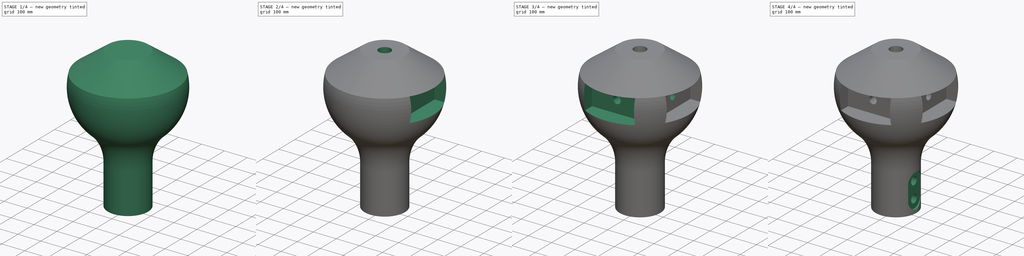
[diagram: build sequence overview — one tinted view per stage of 4, left to right]
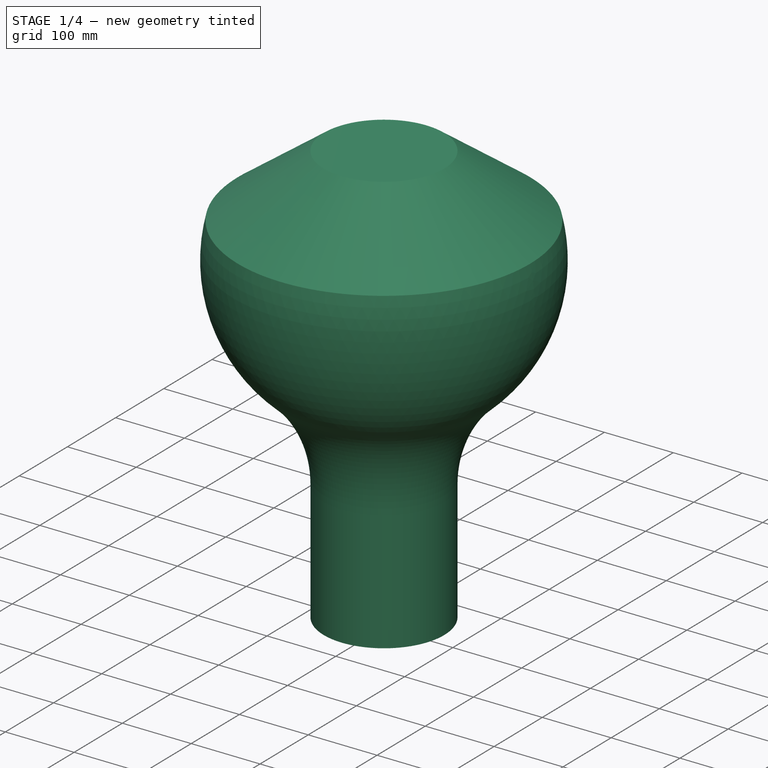
[diagram: stage 1 of 4 — iso view after this stage's code; geometry added in this stage tinted green]
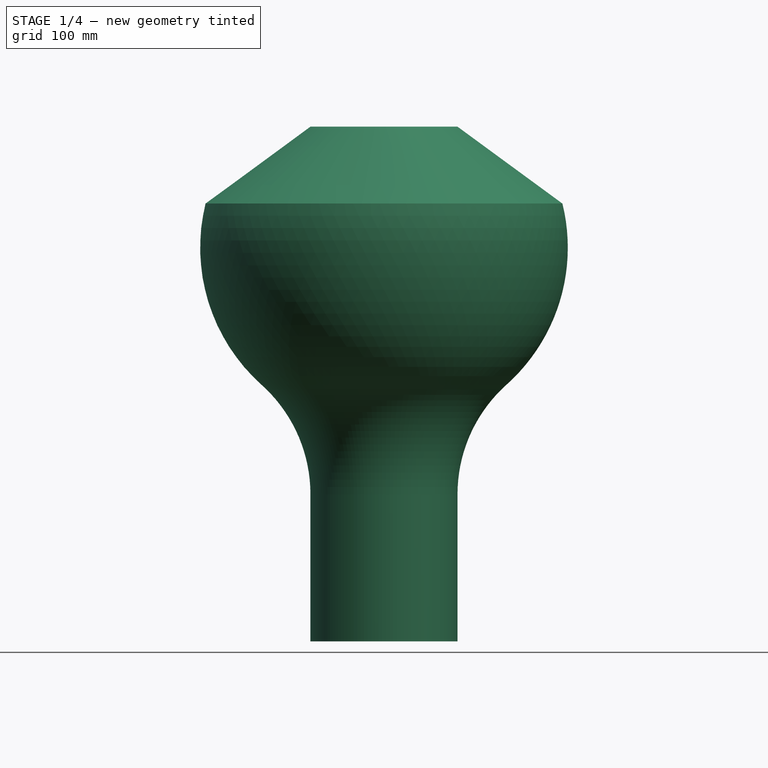
[diagram: stage 1 of 4 — front view after this stage's code; geometry added in this stage tinted green]
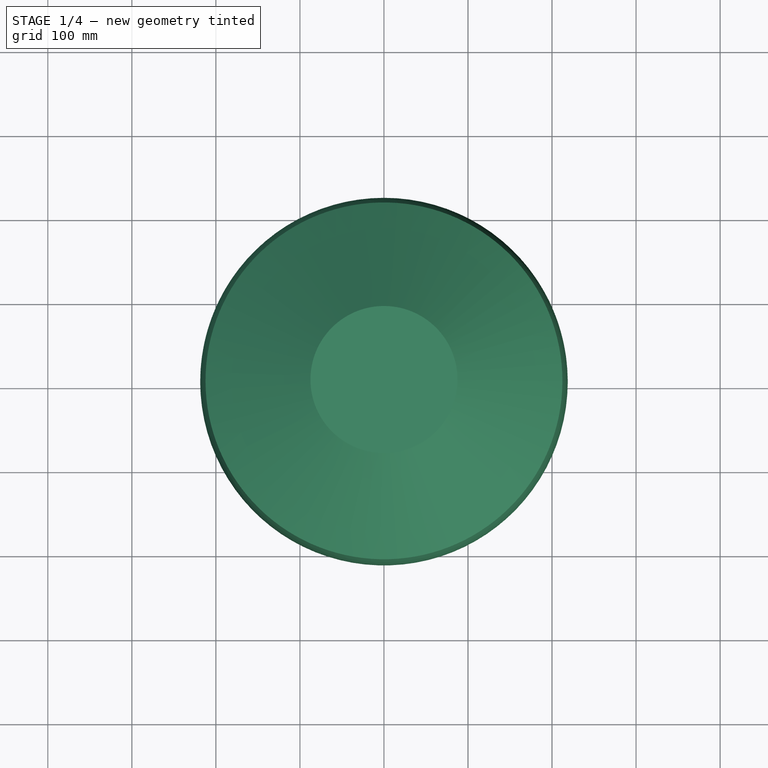
[diagram: stage 1 of 4 — top view after this stage's code; geometry added in this stage tinted green]
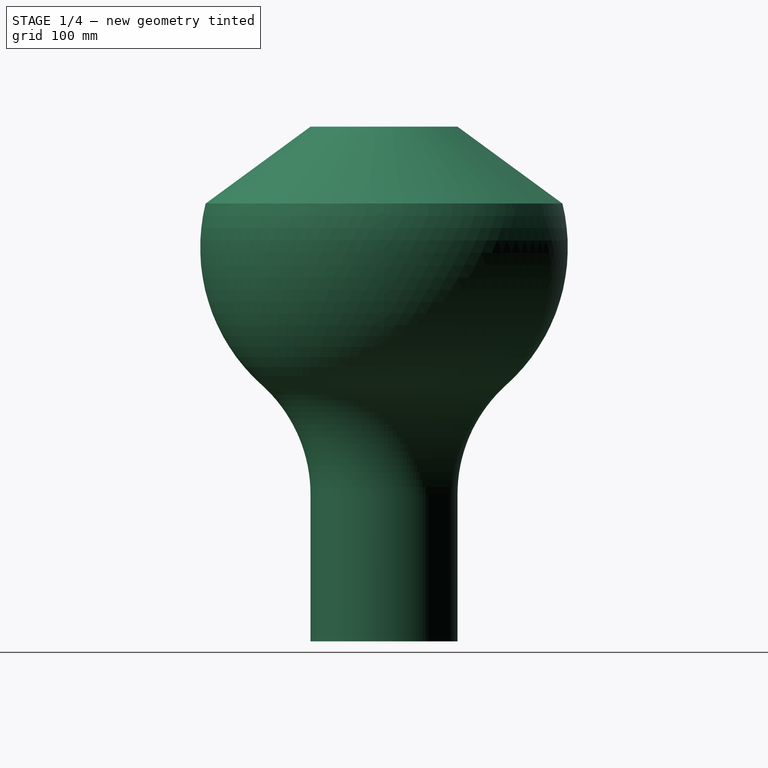
[diagram: stage 1 of 4 — right view after this stage's code; geometry added in this stage tinted green]
FCSTD DOCUMENT  (FreeCAD 1.0R39109 (Git))
Label: 3
License: All rights reserved
LicenseURL: https://en.wikipedia.org/wiki/All_rights_reserved
objects: Sketcher::SketchObject×8, PartDesign::Pocket×5, PartDesign::Plane×3, PartDesign::PolarPattern×2, PartDesign::Revolution×1, PartDesign::AdditiveLoft×1, PartDesign::Body×1
note: 45 computed .brp shape members not serialized (recipe doc carries the construction recipe); baked Part::Feature solids carry a one-line shape summary decoded from their .brp

FEATURE [Sketcher::SketchObject] Sketch
  ArcFitTolerance = 1e-06
  AttachmentSupport = -> [XZ_Plane]
  FullyConstrained = true
  MakeInternals = false
  MapMode = 5
  Placement = pos=(0,0,0) rot=(1,0,0;1.5708rad)
  sketch-geometry (6):
    g0: LineSegment StartX=0 StartY=0 StartZ=0 EndX=87.5 EndY=0 EndZ=0
    g1: LineSegment StartX=87.5 StartY=0 StartZ=0 EndX=87.5 EndY=175 EndZ=0
    g2: ArcOfCircle CenterX=0 CenterY=468.484 CenterZ=0 NormalX=0 NormalY=0 NormalZ=1 AngleXU=0 Radius=218.75 StartAngle=5.44212 EndAngle=6.52555
    g3: ArcOfCircle CenterX=262.5 CenterY=175 CenterZ=0 NormalX=0 NormalY=0 NormalZ=1 AngleXU=0 Radius=175 StartAngle=2.30052 EndAngle=3.14159
    g4: LineSegment StartX=0 StartY=520.984 StartZ=0 EndX=0 EndY=0 EndZ=0
    g5: LineSegment StartX=0 StartY=520.984 StartZ=0 EndX=212.357 EndY=520.984 EndZ=0
  constraints (17):
    c: Coincident(g0,g-1)
    c: PointOnObject(g0,g-1)
    c: Coincident(g1,g0)
    c: Vertical(g1)
    c: Diameter(g2) = 437.5
    c: PointOnObject(g2,g-2)
    c: Tangent(g2,g3) = 1.5708
    c: Tangent(g1,g3) = 1.5708
    c: Radius(g3) = 175
    c: Distance(g1) = 175
    c: Coincident(g4,g0)
    c: Vertical(g4)
    c: Horizontal(g5)
    c: Distance(g2,g5) = 52.5
    c: Coincident(g4,g5)
    c: Coincident(g5,g2)
    c: Distance(g0) = 87.5
FEATURE [PartDesign::Revolution] Revolution
  Angle = 360
  Angle2 = 60
  Axis = (0,2e-16,1)
  Base = (0,0,0)
  Placement = pos=(0,0,0) rot=(1,0,0;1.5708rad)
  Profile = -> Sketch
  ReferenceAxis = -> Sketch [V_Axis]
  Refine = true
  Reversed = true
  Suppressed = false
  Type = 0
FEATURE [PartDesign::Plane] DatumPlane
  AttachmentOffset = pos=(0,0,612.5) rot=(0,0,1;0rad)
  AttachmentSupport = -> [XY_Plane]
  Length = 509.656
  MapMode = 5
  Placement = pos=(0,0,612.5) rot=(0,0,1;0rad)
  ResizeMode = 0
  Width = 509.656
FEATURE [Sketcher::SketchObject] Sketch001
  ArcFitTolerance = 1e-06
  AttachmentSupport = -> [DatumPlane]
  FullyConstrained = true
  MakeInternals = false
  MapMode = 5
  Placement = pos=(0,0,612.5) rot=(0,0,1;0rad)
  sketch-geometry (1):
    g0: Circle CenterX=0 CenterY=0 CenterZ=0 NormalX=0 NormalY=0 NormalZ=1 AngleXU=0 Radius=87.5
  constraints (2):
    c: Diameter(g0) = 175
    c: Coincident(g0,g-1)
FEATURE [PartDesign::AdditiveLoft] AdditiveLoft
  BaseFeature = -> Revolution
  Closed = false
  Placement = pos=(0,0,0) rot=(1,0,0;1.5708rad)
  Profile = -> Revolution [Edge6]
  Refine = true
  Ruled = false
  Sections = -> [Sketch001]
  Suppressed = false
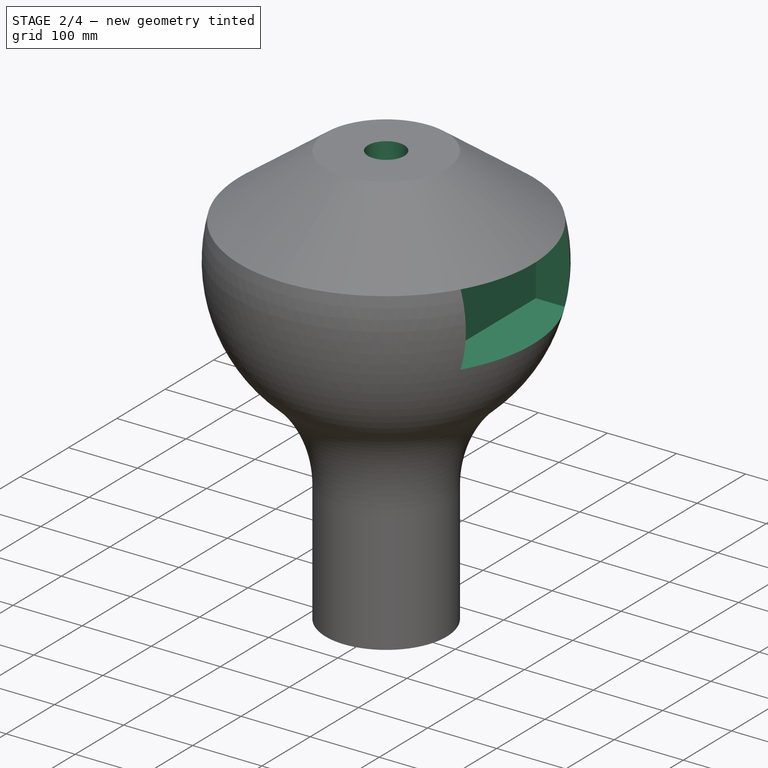
[diagram: stage 2 of 4 — iso view after this stage's code; geometry added in this stage tinted green]
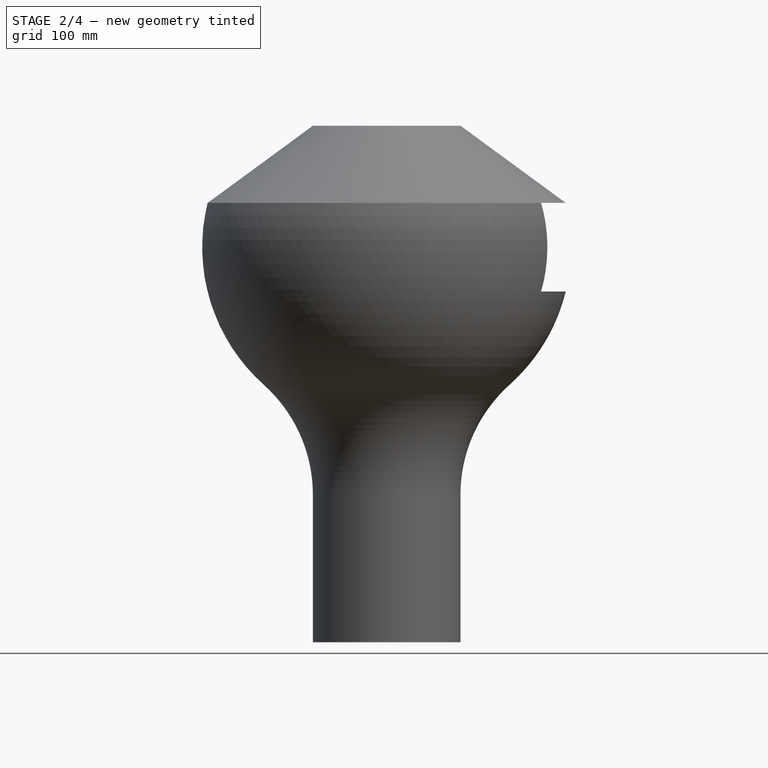
[diagram: stage 2 of 4 — front view after this stage's code; geometry added in this stage tinted green]
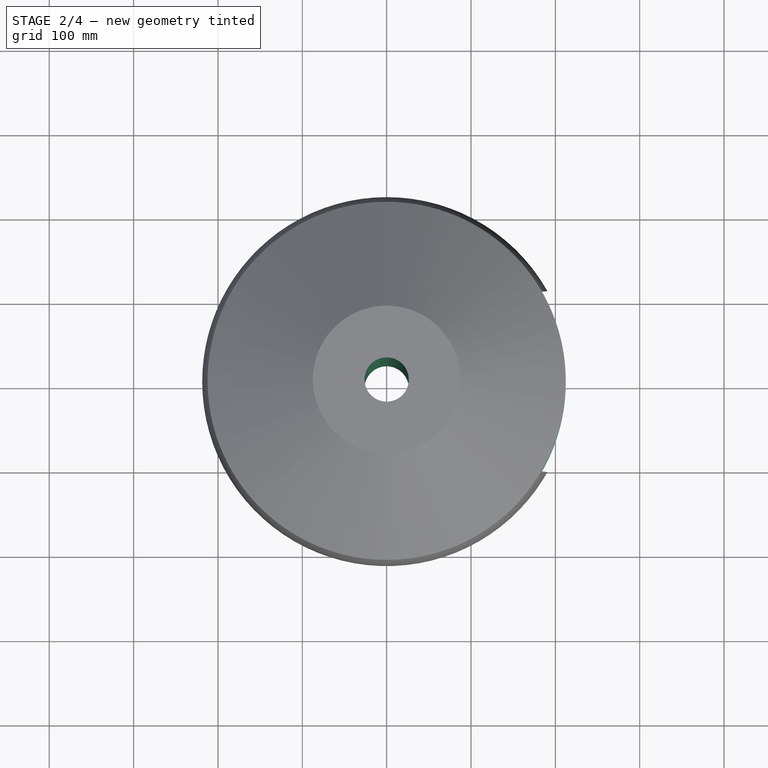
[diagram: stage 2 of 4 — top view after this stage's code; geometry added in this stage tinted green]
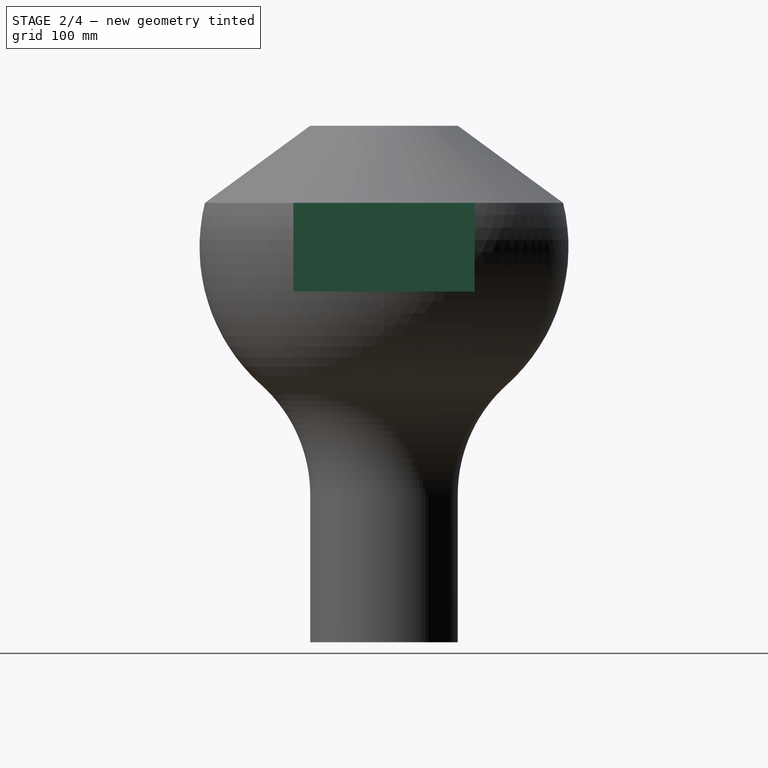
[diagram: stage 2 of 4 — right view after this stage's code; geometry added in this stage tinted green]
FEATURE [Sketcher::SketchObject] Sketch002
  ArcFitTolerance = 1e-06
  AttachmentSupport = -> [AdditiveLoft]
  FullyConstrained = true
  MakeInternals = false
  MapMode = 5
  Placement = pos=(0,0,612.5) rot=(0,0,1;3.14159rad)
  sketch-geometry (1):
    g0: Circle CenterX=0 CenterY=0 CenterZ=0 NormalX=0 NormalY=0 NormalZ=1 AngleXU=0 Radius=26.25
  constraints (2):
    c: Diameter(g0) = 52.5
    c: Coincident(g0,g-1)
FEATURE [PartDesign::Pocket] Pocket
  BaseFeature = -> AdditiveLoft
  Direction = (0,0,-1)
  Length = 5
  Length2 = 5
  Placement = pos=(0,0,0) rot=(1,0,0;1.5708rad)
  Profile = -> Sketch002
  ReferenceAxis = -> Sketch002 [N_Axis]
  Refine = true
  Suppressed = false
  Type = 1
FEATURE [Sketcher::SketchObject] Sketch003
  ArcFitTolerance = 1e-06
  AttachmentSupport = -> [XY_Plane]
  FullyConstrained = true
  MakeInternals = false
  MapMode = 5
  sketch-geometry (6):
    g0: Circle [constr] CenterX=0 CenterY=0 CenterZ=0 NormalX=0 NormalY=0 NormalZ=1 AngleXU=0 Radius=218.75
    g1: LineSegment [constr] StartX=181.233 StartY=122.5 StartZ=0 EndX=181.233 EndY=-122.5 EndZ=0
    g2: LineSegment StartX=141.233 StartY=167.048 StartZ=0 EndX=141.233 EndY=-167.048 EndZ=0
    g3: Circle [constr] CenterX=0 CenterY=0 CenterZ=0 NormalX=0 NormalY=0 NormalZ=1 AngleXU=0 Radius=87.5
    g4: LineSegment [constr] StartX=85.4122 StartY=-19 StartZ=0 EndX=85.4122 EndY=19 EndZ=0
    g5: LineSegment StartX=77.4122 StartY=40.7872 StartZ=0 EndX=77.4122 EndY=-40.7872 EndZ=0
  constraints (20):
    c: Diameter(g0) = 437.5
    c: Coincident(g0,g-1)
    c: Distance(g1) = 245
    c: PointOnObject(g1,g0)
    c: PointOnObject(g1,g0)
    c: Vertical(g1)
    c: PointOnObject(g2,g0)
    c: PointOnObject(g2,g0)
    c: Vertical(g2)
    c: Distance(g2,g1) = 40
    c: Diameter(g3) = 175
    c: Coincident(g3,g0)
    c: PointOnObject(g4,g3)
    c: PointOnObject(g4,g3)
    c: Vertical(g4)
    c: Distance(g4) = 38
    c: PointOnObject(g5,g3)
    c: PointOnObject(g5,g3)
    c: Vertical(g5)
    c: Distance(g4,g5) = 8
FEATURE [PartDesign::Plane] DatumPlane001
  AttachmentSupport = -> [YZ_Plane,Sketch003]
  Length = 528.781
  MapMode = 53
  Placement = pos=(141.233,-1.57e-14,1.57e-14) rot=(0.57735,0.57735,0.57735;2.0944rad)
  ResizeMode = 0
  Width = 741.568
FEATURE [Sketcher::SketchObject] Sketch004
  ArcFitTolerance = 1e-06
  AttachmentSupport = -> [DatumPlane001]
  ExternalGeometry = -> [Pocket]
  FullyConstrained = true
  MakeInternals = false
  MapMode = 5
  Placement = pos=(141.233,-1.57e-14,1.57e-14) rot=(0.57735,0.57735,0.57735;2.0944rad)
  sketch-geometry (4):
    g0: LineSegment StartX=-107.5 StartY=520.984 StartZ=0 EndX=-107.5 EndY=415.984 EndZ=0
    g1: LineSegment StartX=-107.5 StartY=415.984 StartZ=0 EndX=107.5 EndY=415.984 EndZ=0
    g2: LineSegment StartX=107.5 StartY=415.984 StartZ=0 EndX=107.5 EndY=520.984 EndZ=0
    g3: LineSegment StartX=107.5 StartY=520.984 StartZ=0 EndX=-107.5 EndY=520.984 EndZ=0
  constraints (11):
    c: Coincident(g0,g1)
    c: Coincident(g1,g2)
    c: Coincident(g2,g3)
    c: Coincident(g3,g0)
    c: Vertical(g0)
    c: Vertical(g2)
    c: Horizontal(g1)
    c: Distance(g0,g2) = 215
    c: Distance(g1,g3) = 105
    c: Symmetric(g2,g0,g-2)
    c: PointOnObject(g0,g-3)
FEATURE [PartDesign::Pocket] Pocket001
  BaseFeature = -> Pocket
  Direction = (-1,0,0)
  Length = 5
  Length2 = 5
  Placement = pos=(0,0,0) rot=(1,0,0;1.5708rad)
  Profile = -> Sketch004
  ReferenceAxis = -> Sketch004 [N_Axis]
  Refine = true
  Reversed = true
  Suppressed = false
  Type = 1
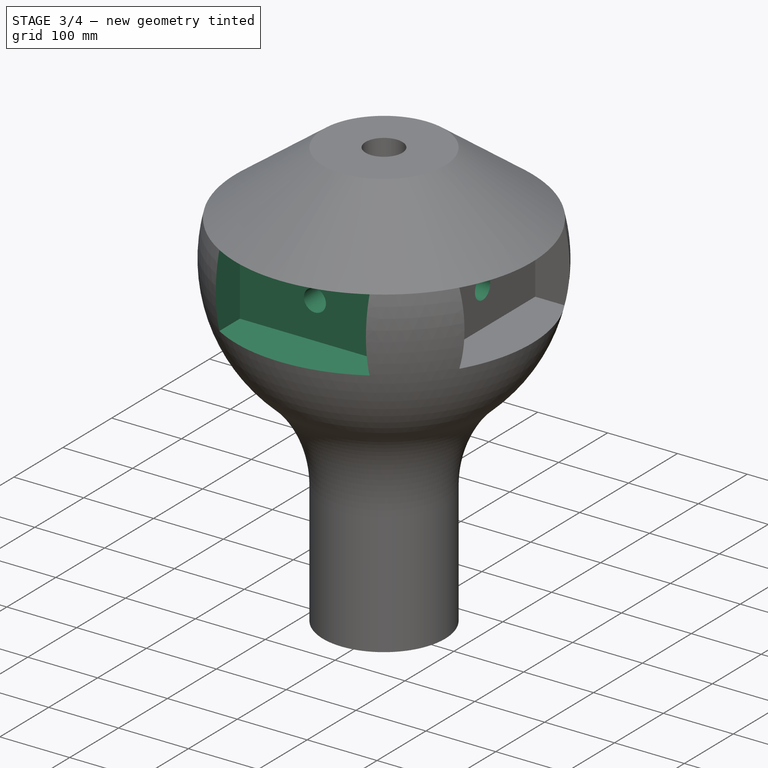
[diagram: stage 3 of 4 — iso view after this stage's code; geometry added in this stage tinted green]
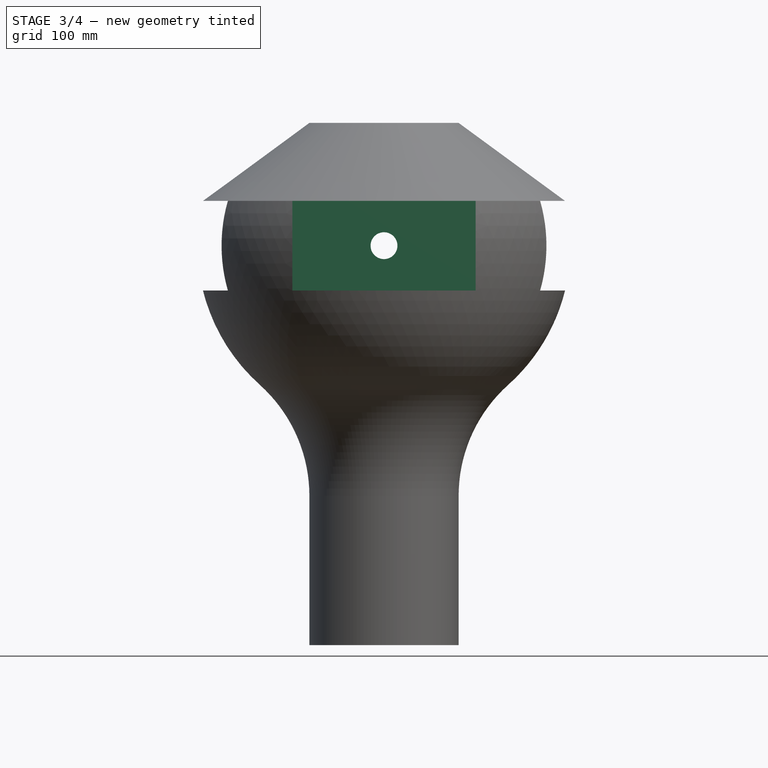
[diagram: stage 3 of 4 — front view after this stage's code; geometry added in this stage tinted green]
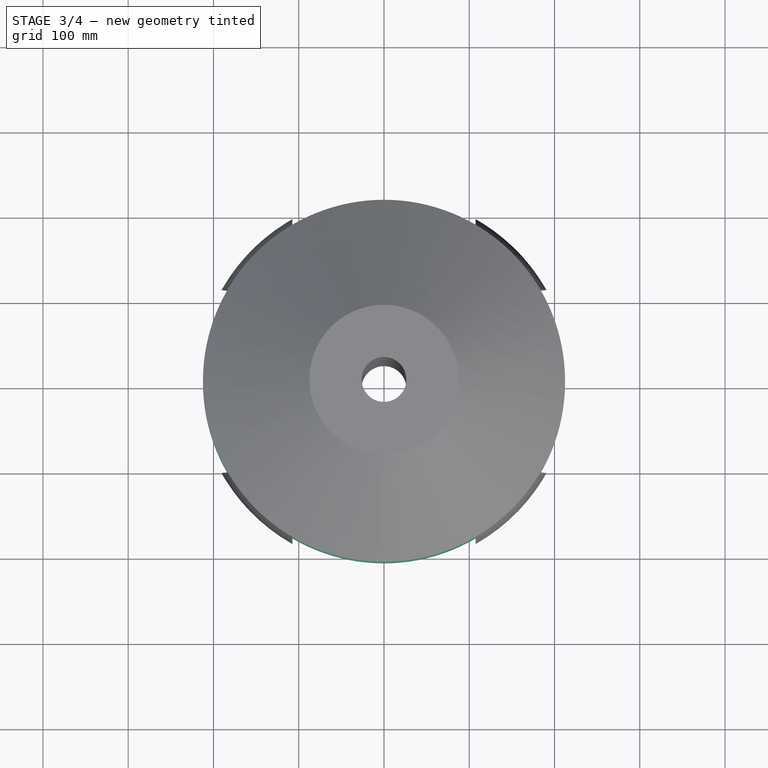
[diagram: stage 3 of 4 — top view after this stage's code; geometry added in this stage tinted green]
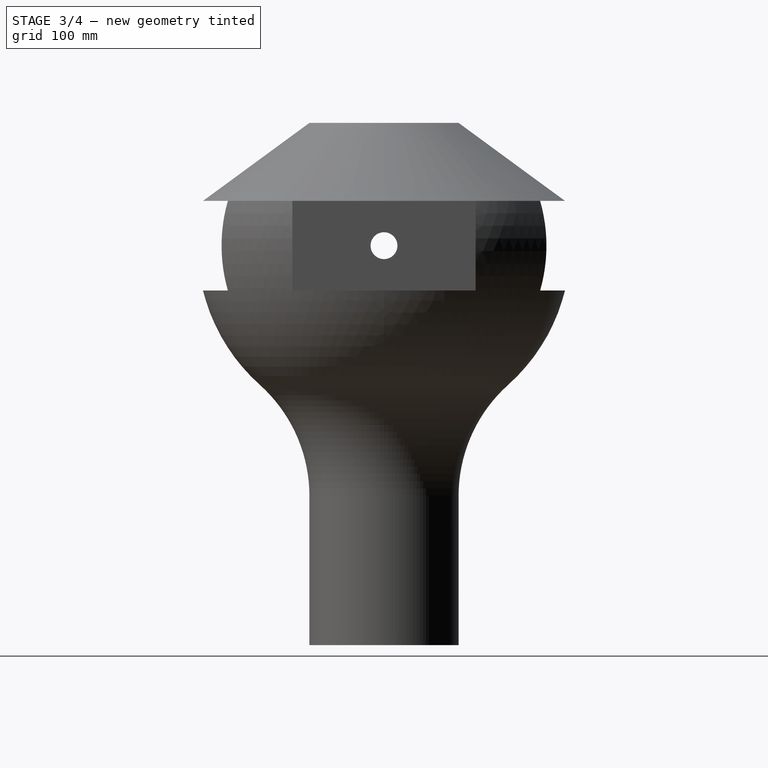
[diagram: stage 3 of 4 — right view after this stage's code; geometry added in this stage tinted green]
FEATURE [PartDesign::PolarPattern] PolarPattern
  Angle = 360
  Axis = -> Z_Axis
  BaseFeature = -> Pocket001
  Mode = 0
  Occurrences = 4
  Offset = 120
  Originals = -> [Pocket001]
  Placement = pos=(0,0,0) rot=(1,0,0;1.5708rad)
  Refine = true
  Suppressed = false
  TransformMode = 0
FEATURE [Sketcher::SketchObject] Sketch005
  ArcFitTolerance = 1e-06
  AttachmentSupport = -> [PolarPattern]
  ExternalGeometry = -> [PolarPattern]
  FullyConstrained = true
  MakeInternals = false
  MapMode = 5
  Placement = pos=(141.233,0,0) rot=(0.707107,0,0.707107;3.14159rad)
  sketch-geometry (2):
    g0: LineSegment [constr] StartX=415.984 StartY=-107.5 StartZ=0 EndX=520.984 EndY=107.5 EndZ=0
    g1: Circle CenterX=468.484 CenterY=-2.1885e-12 CenterZ=0 NormalX=0 NormalY=0 NormalZ=1 AngleXU=0 Radius=15.75
  constraints (4):
    c: Coincident(g0,g-4)
    c: Coincident(g0,g-3)
    c: Diameter(g1) = 31.5
    c: Symmetric(g0,g0,g1)
FEATURE [PartDesign::Pocket] Pocket002
  BaseFeature = -> PolarPattern
  Direction = (-1,0,2e-16)
  Length = 5
  Length2 = 5
  Placement = pos=(0,0,0) rot=(1,0,0;1.5708rad)
  Profile = -> Sketch005
  ReferenceAxis = -> Sketch005 [N_Axis]
  Refine = true
  Suppressed = false
  Type = 1
FEATURE [PartDesign::PolarPattern] PolarPattern001
  Angle = 360
  Axis = -> Z_Axis
  BaseFeature = -> Pocket002
  Mode = 0
  Occurrences = 4
  Offset = 120
  Originals = -> [Pocket002]
  Placement = pos=(0,0,0) rot=(1,0,0;1.5708rad)
  Refine = true
  Suppressed = false
  TransformMode = 0
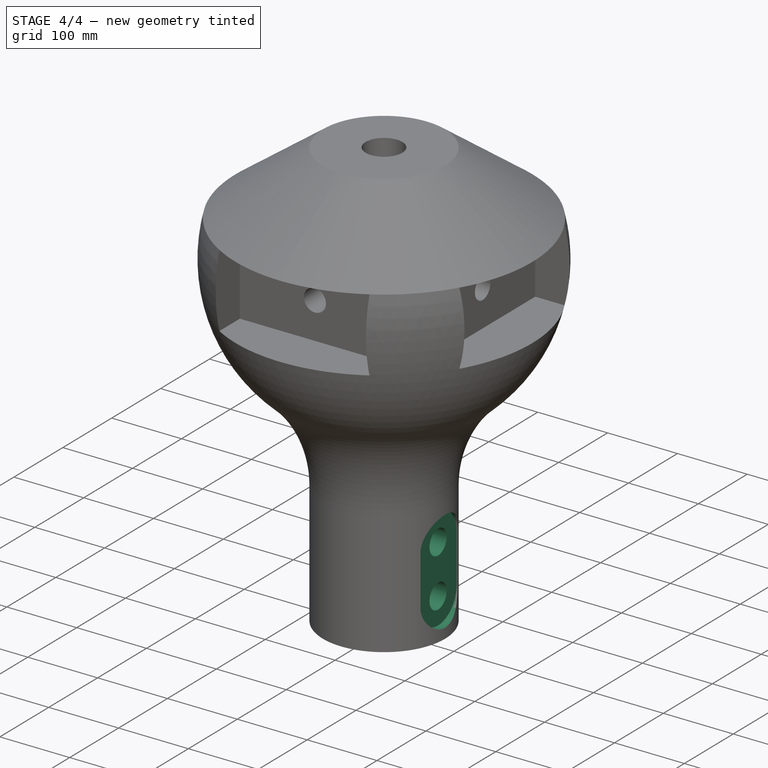
[diagram: stage 4 of 4 — iso view after this stage's code; geometry added in this stage tinted green]
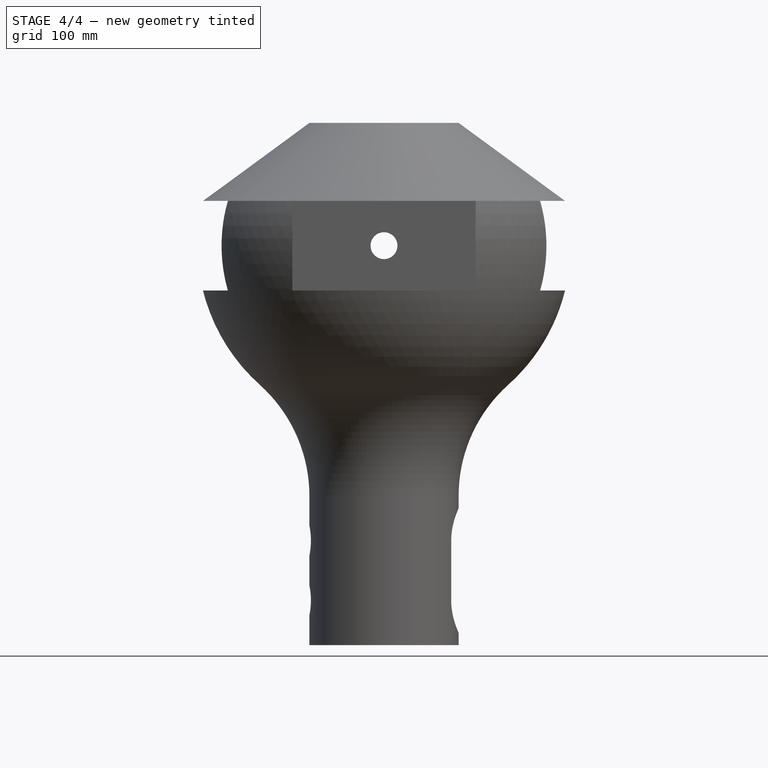
[diagram: stage 4 of 4 — front view after this stage's code; geometry added in this stage tinted green]
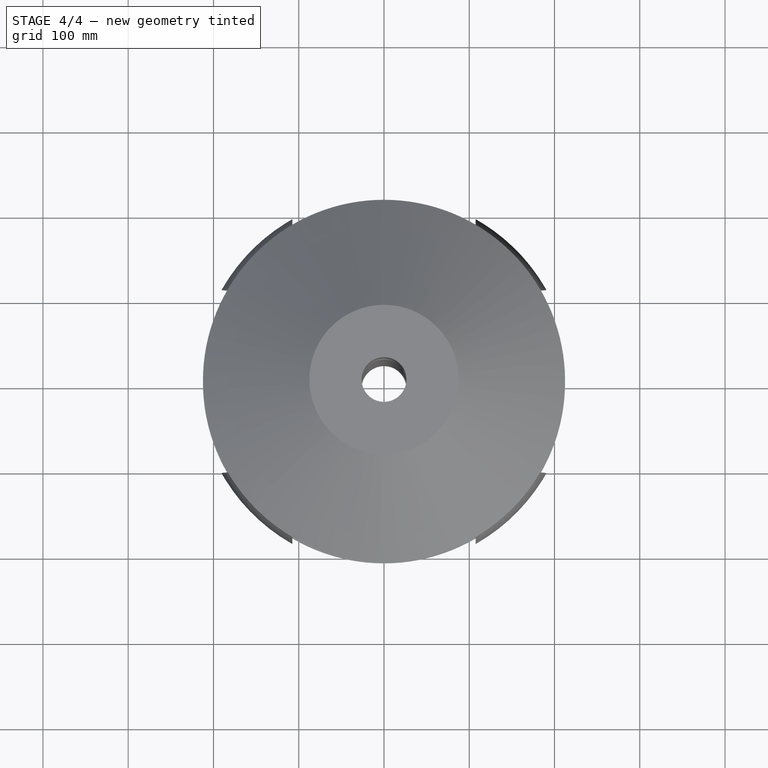
[diagram: stage 4 of 4 — top view after this stage's code; geometry added in this stage tinted green]
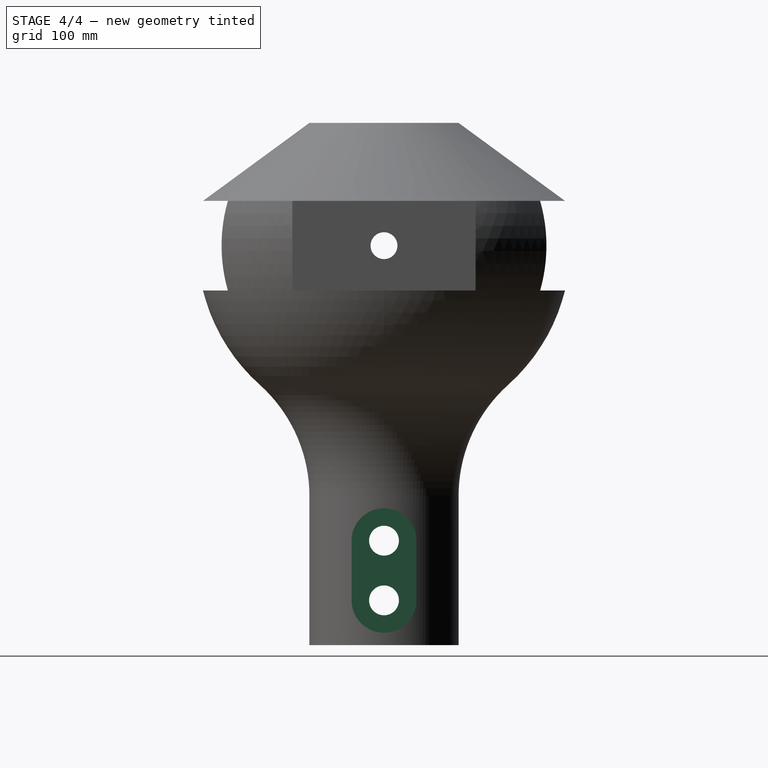
[diagram: stage 4 of 4 — right view after this stage's code; geometry added in this stage tinted green]
FEATURE [PartDesign::Plane] DatumPlane002
  AttachmentSupport = -> [YZ_Plane,Sketch003]
  Length = 528.781
  MapMode = 53
  Placement = pos=(77.4122,-8.6e-15,8.6e-15) rot=(0.57735,0.57735,0.57735;2.0944rad)
  ResizeMode = 0
  Width = 741.568
FEATURE [Sketcher::SketchObject] Sketch006
  ArcFitTolerance = 1e-06
  AttachmentSupport = -> [DatumPlane002]
  FullyConstrained = true
  MakeInternals = false
  MapMode = 5
  Placement = pos=(77.4122,-8.6e-15,8.6e-15) rot=(0.57735,0.57735,0.57735;2.0944rad)
  sketch-geometry (4):
    g0: ArcOfCircle CenterX=-3e-15 CenterY=122.5 CenterZ=0 NormalX=0 NormalY=0 NormalZ=1 AngleXU=0 Radius=38 StartAngle=0 EndAngle=3.14159
    g1: ArcOfCircle CenterX=0 CenterY=52.5 CenterZ=0 NormalX=0 NormalY=0 NormalZ=1 AngleXU=0 Radius=38 StartAngle=3.14159 EndAngle=6.28319
    g2: LineSegment StartX=38 StartY=122.5 StartZ=0 EndX=38 EndY=52.5 EndZ=0
    g3: LineSegment StartX=-38 StartY=122.5 StartZ=0 EndX=-38 EndY=52.5 EndZ=0
  constraints (10):
    c: Tangent(g0,g2) = 1.5708
    c: Tangent(g0,g3) = -1.5708
    c: Tangent(g1,g2) = 1.5708
    c: Tangent(g1,g3) = -1.5708
    c: Equal(g0,g1)
    c: Vertical(g3)
    c: Distance(g0,g1) = 70
    c: Radius(g0) = 38
    c: PointOnObject(g1,g-2)
    c: Distance(g1,g-1) = 52.5
FEATURE [PartDesign::Pocket] Pocket003
  BaseFeature = -> PolarPattern001
  Direction = (-1,0,0)
  Length = 5
  Length2 = 5
  Placement = pos=(0,0,0) rot=(1,0,0;1.5708rad)
  Profile = -> Sketch006
  ReferenceAxis = -> Sketch006 [N_Axis]
  Refine = true
  Reversed = true
  Suppressed = false
  Type = 1
FEATURE [Sketcher::SketchObject] Sketch007
  ArcFitTolerance = 1e-06
  AttachmentSupport = -> [Pocket003]
  ExternalGeometry = -> [Pocket003]
  FullyConstrained = true
  MakeInternals = false
  MapMode = 5
  Placement = pos=(77.4122,0,0) rot=(0.707107,0,0.707107;3.14159rad)
  sketch-geometry (2):
    g0: Circle CenterX=52.5 CenterY=0 CenterZ=0 NormalX=0 NormalY=0 NormalZ=1 AngleXU=0 Radius=17.5
    g1: Circle CenterX=122.5 CenterY=0 CenterZ=0 NormalX=0 NormalY=0 NormalZ=1 AngleXU=0 Radius=17.5
  constraints (6):
    c: Diameter(g0) = 35
    c: PointOnObject(g0,g-1)
    c: Diameter(g1) = 35
    c: PointOnObject(g1,g-1)
    c: Vertical(g1,g-3)
    c: Vertical(g0,g-3)
FEATURE [PartDesign::Pocket] Pocket004
  BaseFeature = -> Pocket003
  Direction = (-1,0,2e-16)
  Length = 5
  Length2 = 5
  Placement = pos=(0,0,0) rot=(1,0,0;1.5708rad)
  Profile = -> Sketch007
  ReferenceAxis = -> Sketch007 [N_Axis]
  Refine = true
  Suppressed = false
  Type = 1
FEATURE [PartDesign::Body] Body  label="Тело"
  AllowCompound = false
  Group = -> [Sketch,Revolution,DatumPlane,Sketch001,AdditiveLoft,Sketch002,Pocket,Sketch003,DatumPlane001,Sketch004,Pocket001,PolarPattern,Sketch005,Pocket002,PolarPattern001,DatumPlane002,Sketch006,Pocket003,Sketch007,Pocket004]
  Origin = -> Origin
  Tip = -> Pocket004
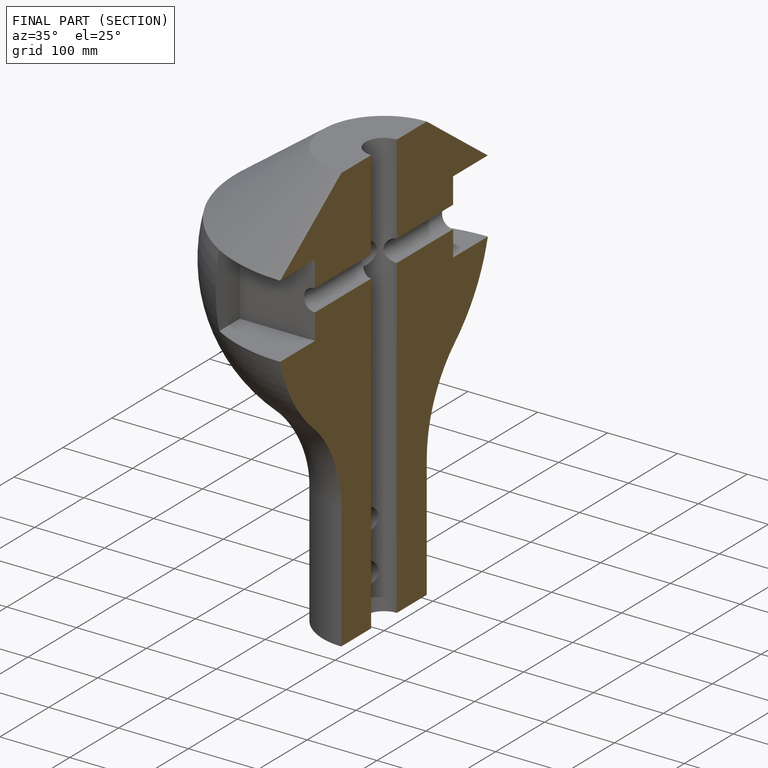
[diagram: finished part — half-section view (interior)]
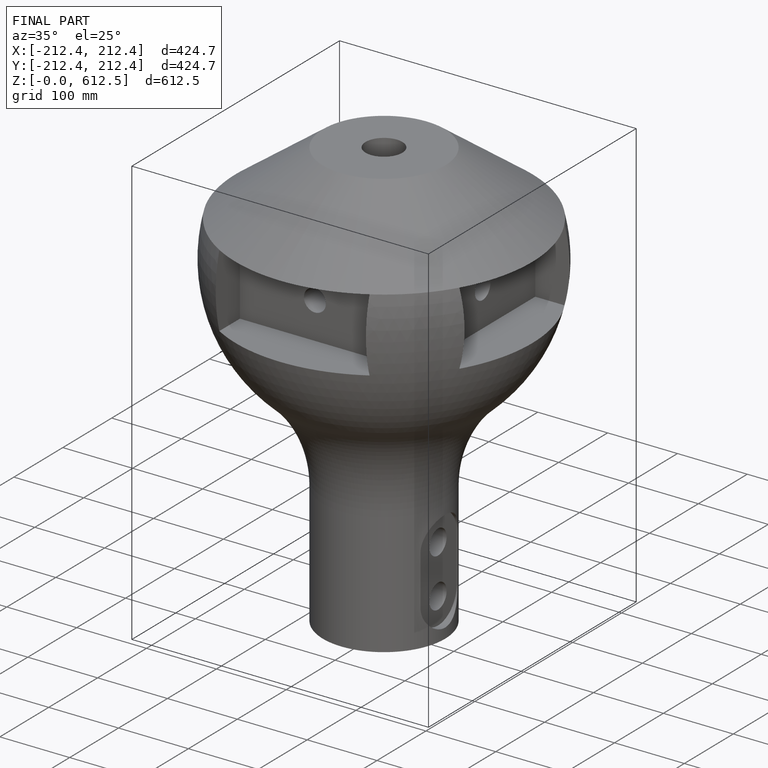
[diagram: finished part — iso view with bounding-box wireframe]
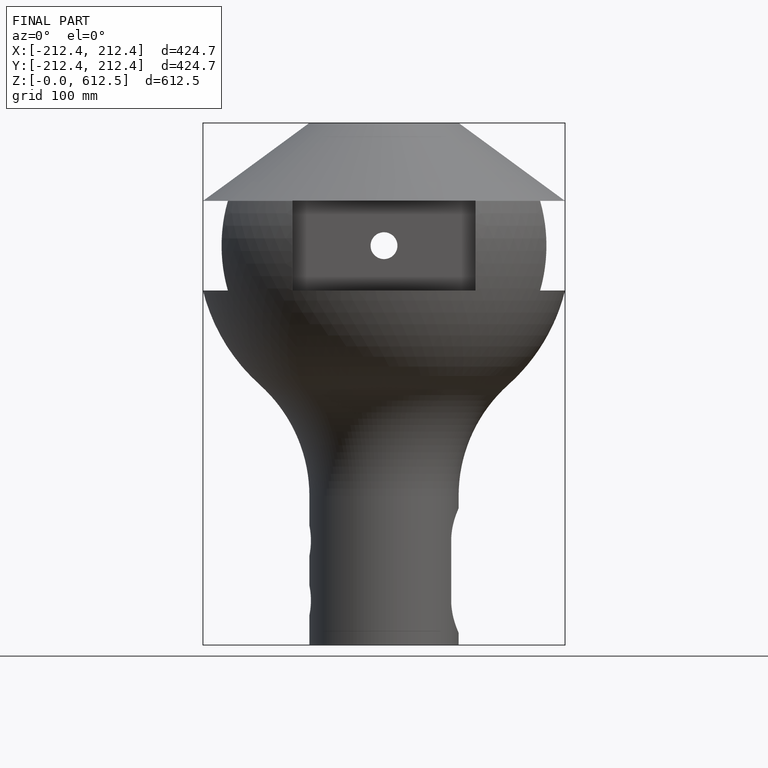
[diagram: finished part — front view with bounding-box wireframe]
